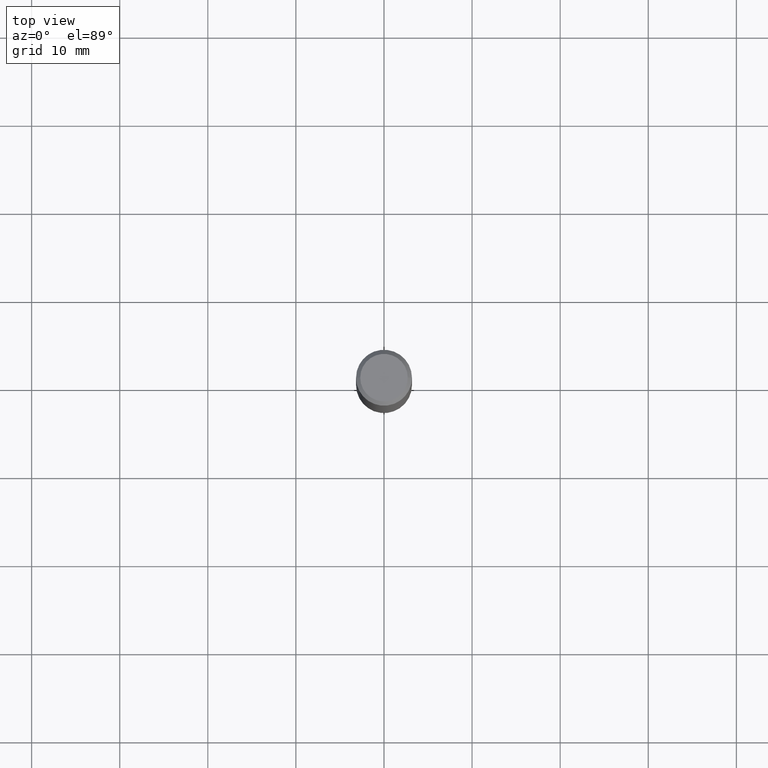
[diagram: clean part render]
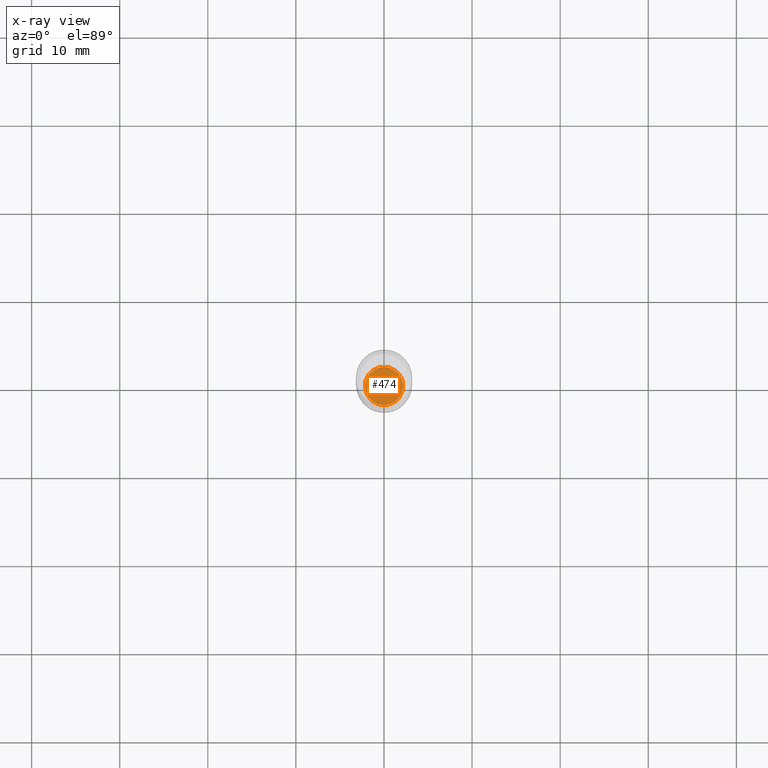
[diagram: x-ray — body ghosted, one internal face saturated and labeled with its STEP entity id]
A machine part, top view, then the same camera in x-ray: the body is ghosted and one INTERNAL B-rep face — a face not visible from any outside direction — is saturated and labeled: STEP entity #474.
In plain terms, the highlighted planar face has unit normal (-0, 0, 1).
Its self-contained STEP definition (entity closure, byte-faithful):
#21 = AXIS2_PLACEMENT_3D ( 'NONE', #355, #357, #350 ) ;
#24 = ORIENTED_EDGE ( 'NONE', *, *, #234, .F. ) ;
#37 = EDGE_LOOP ( 'NONE', ( #24, #212 ) ) ;
#43 = CARTESIAN_POINT ( 'NONE',  ( -0.08544999999999998430, -6.973340324952309186E-15, -2.171899999999999498 ) ) ;
#53 = AXIS2_PLACEMENT_3D ( 'NONE', #231, #68, #147 ) ;
#62 = CIRCLE ( 'NONE', #21, 0.08544999999999998430 ) ;
#68 = DIRECTION ( 'NONE',  ( -2.438088387897960049E-29, 3.491481338843145188E-15, 1.000000000000000000 ) ) ;
#131 = AXIS2_PLACEMENT_3D ( 'NONE', #390, #207, #209 ) ;
#147 = DIRECTION ( 'NONE',  ( 1.000000000000000000, -6.982962677686265922E-15, 4.876176775795935793E-29 ) ) ;
#179 = VERTEX_POINT ( 'NONE', #43 ) ;
#188 = FACE_OUTER_BOUND ( 'NONE', #37, .T. ) ;
#207 = DIRECTION ( 'NONE',  ( -2.445468806185136597E-29, 3.491481338843145583E-15, 1.000000000000000000 ) ) ;
#209 = DIRECTION ( 'NONE',  ( 1.000000000000000000, -6.982962677686267499E-15, 0.000000000000000000 ) ) ;
#212 = ORIENTED_EDGE ( 'NONE', *, *, #215, .F. ) ;
#215 = EDGE_CURVE ( 'NONE', #179, #410, #491, .T. ) ;
#231 = CARTESIAN_POINT ( 'NONE',  ( 1.015999913565856614E-28, -6.395548061535980730E-16, -2.171899999999999942 ) ) ;
#234 = EDGE_CURVE ( 'NONE', #410, #179, #62, .T. ) ;
#335 = CARTESIAN_POINT ( 'NONE',  ( 0.08544999999999998430, -8.179842480641717399E-15, -2.171899999999999498 ) ) ;
#350 = DIRECTION ( 'NONE',  ( 1.000000000000000000, -6.982962677686267499E-15, 0.000000000000000000 ) ) ;
#355 = CARTESIAN_POINT ( 'NONE',  ( 5.311313700153497401E-29, -7.583148319833426180E-15, -2.171899999999999498 ) ) ;
#357 = DIRECTION ( 'NONE',  ( -2.445468806185136597E-29, 3.491481338843145583E-15, 1.000000000000000000 ) ) ;
#390 = CARTESIAN_POINT ( 'NONE',  ( 5.311313700153497401E-29, -7.583148319833426180E-15, -2.171899999999999498 ) ) ;
#410 = VERTEX_POINT ( 'NONE', #335 ) ;
#474 = ADVANCED_FACE ( 'NONE', ( #188 ), #489, .F. ) ;
#489 = PLANE ( 'NONE',  #53 ) ;
#491 = CIRCLE ( 'NONE', #131, 0.08544999999999998430 ) ;